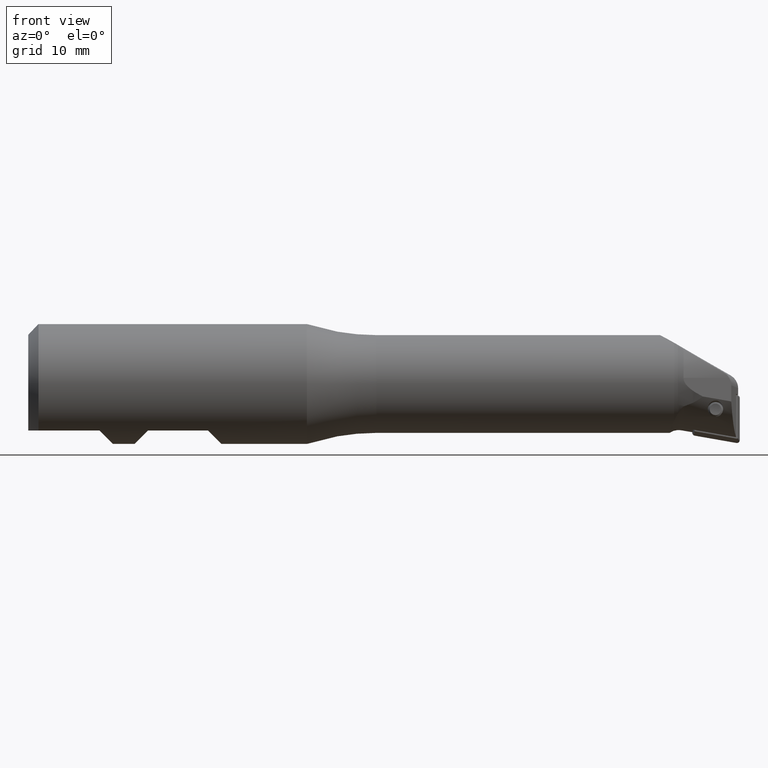
[diagram: clean part render]
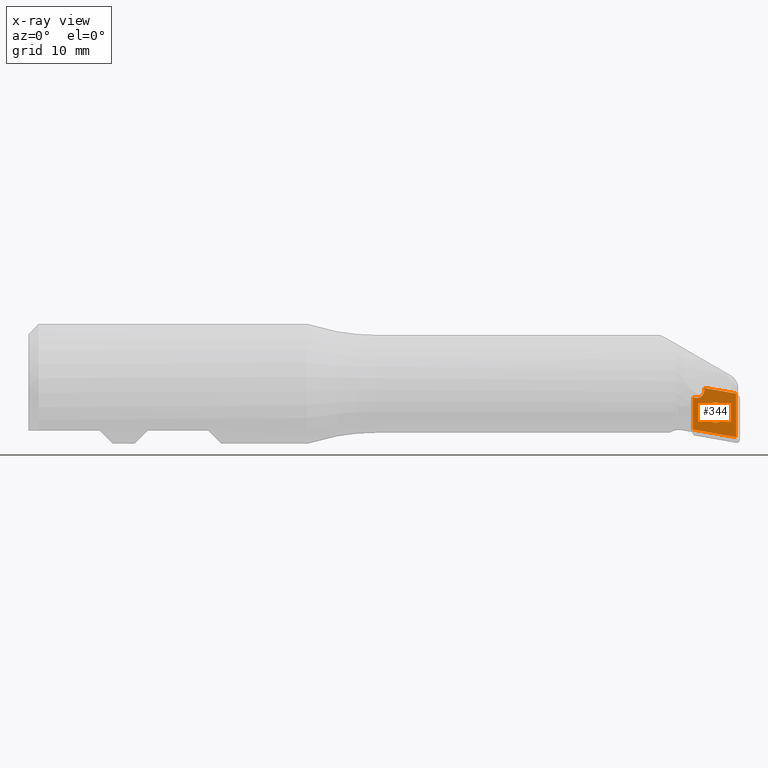
[diagram: x-ray — body ghosted, one internal face saturated and labeled with its STEP entity id]
A machine part, front view, then the same camera in x-ray: the body is ghosted and one INTERNAL B-rep face — a face not visible from any outside direction — is saturated and labeled: STEP entity #344.
In plain terms, the highlighted planar face has unit normal (-0, 0.9925, -0.1219).
Its self-contained STEP definition (entity closure, byte-faithful):
#52 = DIRECTION ( 'NONE',  ( -0.0000000000000000000, 0.9925461516413219800, -0.1218693434051477500 ) ) ;
#53 = VERTEX_POINT ( 'NONE', #1488 ) ;
#67 = CARTESIAN_POINT ( 'NONE',  ( 94.50777274505108500, -2.302685562093975700, -7.099757397851055500 ) ) ;
#93 = AXIS2_PLACEMENT_3D ( 'NONE', #2856, #1294, #2027 ) ;
#120 = CIRCLE ( 'NONE', #2107, 1.350000000000003900 ) ;
#230 = CARTESIAN_POINT ( 'NONE',  ( 88.75805041359456000, -2.361224429778114000, -7.576518215772043900 ) ) ;
#233 = EDGE_CURVE ( 'NONE', #53, #53, #120, .T. ) ;
#244 = AXIS2_PLACEMENT_3D ( 'NONE', #606, #872, #1439 ) ;
#272 = LINE ( 'NONE', #1547, #2208 ) ;
#338 = ORIENTED_EDGE ( 'NONE', *, *, #2241, .T. ) ;
#344 = ADVANCED_FACE ( 'NONE', ( #2723, #3466 ), #2278, .T. ) ;
#378 = CARTESIAN_POINT ( 'NONE',  ( 94.50777274505108500, -1.588592638603307600, -1.283937247177911100 ) ) ;
#447 = LINE ( 'NONE', #230, #1719 ) ;
#606 = CARTESIAN_POINT ( 'NONE',  ( 95.00000000000000000, -1.599170037906449300, -1.370083251409715000 ) ) ;
#622 = CARTESIAN_POINT ( 'NONE',  ( 91.75805041359456000, -1.900752382032044900, -3.826274338529161300 ) ) ;
#697 = DIRECTION ( 'NONE',  ( 0.9848077530122073500, -0.02116238939576970500, -0.1723538304828441900 ) ) ;
#872 = DIRECTION ( 'NONE',  ( -7.045937527079171100E-018, 0.9925461516413219800, -0.1218693434051477400 ) ) ;
#1129 = DIRECTION ( 'NONE',  ( 0.9848077530122072400, -0.02116238939576974000, -0.1723538304828443900 ) ) ;
#1146 = CARTESIAN_POINT ( 'NONE',  ( 90.19774303438049400, -1.495975042158149200, -0.5296274564021956600 ) ) ;
#1236 = CARTESIAN_POINT ( 'NONE',  ( 88.75805041359456000, -1.643198759787968500, -1.728668415193752400 ) ) ;
#1294 = DIRECTION ( 'NONE',  ( -7.045937527079172600E-018, 0.9925461516413220900, -0.1218693434051477500 ) ) ;
#1439 = DIRECTION ( 'NONE',  ( 0.0000000000000000000, 0.1218693434051477400, 0.9925461516413219800 ) ) ;
#1488 = CARTESIAN_POINT ( 'NONE',  ( 91.75805041359456000, -1.736228768435095000, -2.486337033813373200 ) ) ;
#1547 = CARTESIAN_POINT ( 'NONE',  ( 96.05356138408967600, -2.335902787489322600, -7.370289988846875100 ) ) ;
#1568 = EDGE_LOOP ( 'NONE', ( #3089 ) ) ;
#1648 = DIRECTION ( 'NONE',  ( 0.0000000000000000000, 0.1218693434051477700, 0.9925461516413219800 ) ) ;
#1682 = CIRCLE ( 'NONE', #93, 1.000000000000000900 ) ;
#1690 = ORIENTED_EDGE ( 'NONE', *, *, #1880, .T. ) ;
#1719 = VECTOR ( 'NONE', #1648, 1000.000000000000100 ) ;
#1803 = ORIENTED_EDGE ( 'NONE', *, *, #2273, .T. ) ;
#1854 = VECTOR ( 'NONE', #1129, 1000.000000000000100 ) ;
#1880 = EDGE_CURVE ( 'NONE', #3517, #3534, #3098, .T. ) ;
#1958 = DIRECTION ( 'NONE',  ( 0.0000000000000000000, 0.1218693434051477400, 0.9925461516413219800 ) ) ;
#1988 = VECTOR ( 'NONE', #3303, 1000.000000000000100 ) ;
#2007 = EDGE_CURVE ( 'NONE', #2434, #2472, #272, .T. ) ;
#2027 = DIRECTION ( 'NONE',  ( 0.0000000000000000000, 0.1218693434051476700, 0.9925461516413220900 ) ) ;
#2086 = ORIENTED_EDGE ( 'NONE', *, *, #3174, .F. ) ;
#2091 = VERTEX_POINT ( 'NONE', #1236 ) ;
#2107 = AXIS2_PLACEMENT_3D ( 'NONE', #622, #52, #1958 ) ;
#2146 = ORIENTED_EDGE ( 'NONE', *, *, #2007, .F. ) ;
#2208 = VECTOR ( 'NONE', #697, 1000.000000000000100 ) ;
#2241 = EDGE_CURVE ( 'NONE', #3534, #2472, #2619, .T. ) ;
#2273 = EDGE_CURVE ( 'NONE', #2434, #2091, #447, .T. ) ;
#2278 = PLANE ( 'NONE',  #244 ) ;
#2434 = VERTEX_POINT ( 'NONE', #3058 ) ;
#2472 = VERTEX_POINT ( 'NONE', #67 ) ;
#2619 = LINE ( 'NONE', #3013, #1988 ) ;
#2723 = FACE_OUTER_BOUND ( 'NONE', #3081, .T. ) ;
#2758 = CARTESIAN_POINT ( 'NONE',  ( 88.75805041359456000, -1.465037698541490800, -0.2776630124268406100 ) ) ;
#2856 = CARTESIAN_POINT ( 'NONE',  ( 89.25805041359457400, -1.537656812456581900, -0.8690982334438920300 ) ) ;
#3013 = CARTESIAN_POINT ( 'NONE',  ( 94.50777274505108500, -2.484129184311493900, -8.577497114337068900 ) ) ;
#3058 = CARTESIAN_POINT ( 'NONE',  ( 88.75805041359456000, -2.179130622032158500, -6.093483163099980600 ) ) ;
#3081 = EDGE_LOOP ( 'NONE', ( #2146, #1803, #2086, #1690, #338 ) ) ;
#3089 = ORIENTED_EDGE ( 'NONE', *, *, #233, .F. ) ;
#3098 = LINE ( 'NONE', #2758, #1854 ) ;
#3174 = EDGE_CURVE ( 'NONE', #3517, #2091, #1682, .T. ) ;
#3303 = DIRECTION ( 'NONE',  ( 1.760778417024711500E-018, -0.1218693434051477400, -0.9925461516413219800 ) ) ;
#3466 = FACE_BOUND ( 'NONE', #1568, .T. ) ;
#3517 = VERTEX_POINT ( 'NONE', #1146 ) ;
#3534 = VERTEX_POINT ( 'NONE', #378 ) ;